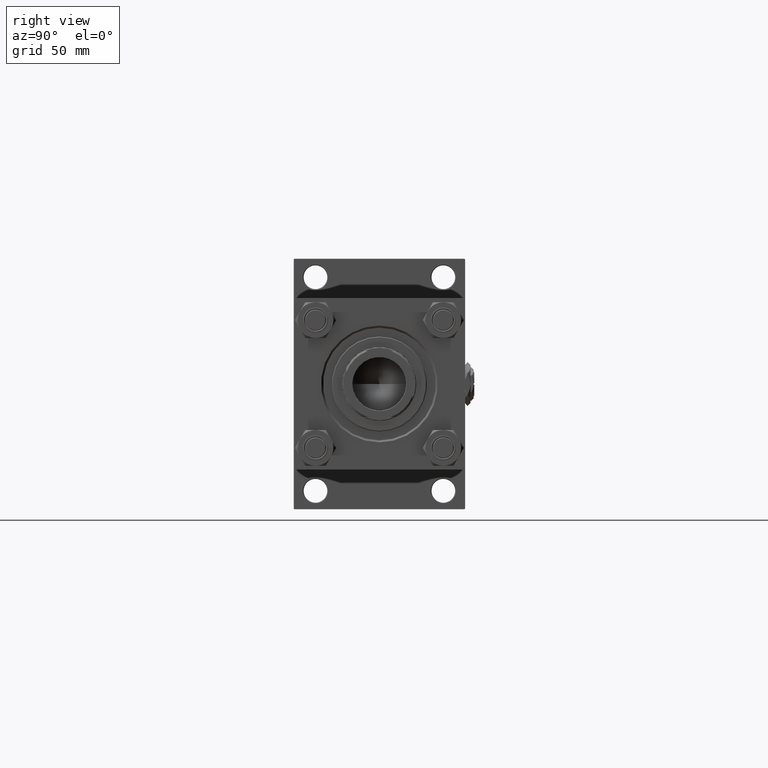
[diagram: clean part render]
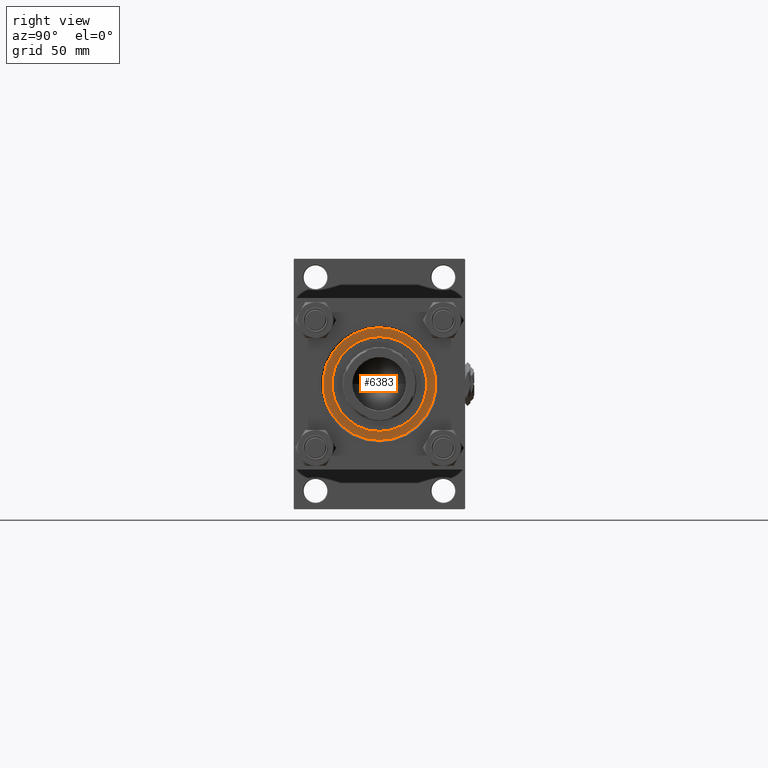
[diagram: same view with one face highlighted and labeled with its STEP entity id]
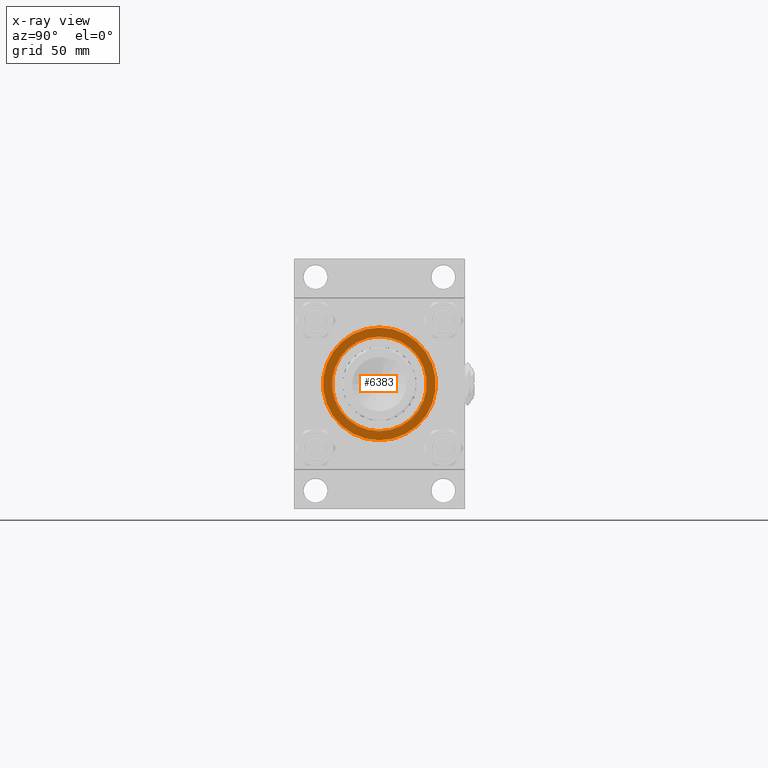
[diagram: x-ray of the same camera — body ghosted, the highlighted face saturated]
A machine part, right view. The second image highlights one B-rep face of the part: STEP entity #6383.
The next image is the same camera in x-ray: the body ghosted, the highlighted face saturated — about 0% of this face is hidden behind the body in this view.
In plain terms, the highlighted planar face has unit normal (1, 0, 0).
Its self-contained STEP definition (entity closure, byte-faithful):
#293 = DIRECTION ( 'NONE',  ( 1.000000000000000000, 0.000000000000000000, 0.000000000000000000 ) ) ;
#1587 = VERTEX_POINT ( 'NONE', #8786 ) ;
#3181 = AXIS2_PLACEMENT_3D ( 'NONE', #25575, #16796, #293 ) ;
#3337 = CIRCLE ( 'NONE', #33073, 36.00000000000000000 ) ;
#4292 = VERTEX_POINT ( 'NONE', #22814 ) ;
#5028 = AXIS2_PLACEMENT_3D ( 'NONE', #49928, #50720, #41956 ) ;
#5650 = CIRCLE ( 'NONE', #38790, 42.75000000000000000 ) ;
#6383 = ADVANCED_FACE ( 'NONE', ( #31605, #15118 ), #51793, .T. ) ;
#8786 = CARTESIAN_POINT ( 'NONE',  ( -36.00000000000000000, 0.000000000000000000, 28.69999999999999929 ) ) ;
#8909 = EDGE_CURVE ( 'NONE', #4292, #27907, #5650, .T. ) ;
#9177 = EDGE_LOOP ( 'NONE', ( #16321, #11313 ) ) ;
#10032 = EDGE_LOOP ( 'NONE', ( #22303, #32652 ) ) ;
#10326 = CARTESIAN_POINT ( 'NONE',  ( 0.000000000000000000, 0.000000000000000000, 28.69999999999999929 ) ) ;
#11138 = DIRECTION ( 'NONE',  ( 0.000000000000000000, 0.000000000000000000, 1.000000000000000000 ) ) ;
#11313 = ORIENTED_EDGE ( 'NONE', *, *, #15185, .T. ) ;
#12281 = CARTESIAN_POINT ( 'NONE',  ( 36.00000000000000000, 4.408728476930470856E-15, 28.69999999999999929 ) ) ;
#13287 = DIRECTION ( 'NONE',  ( 0.000000000000000000, 0.000000000000000000, 1.000000000000000000 ) ) ;
#13387 = VERTEX_POINT ( 'NONE', #12281 ) ;
#13540 = CIRCLE ( 'NONE', #5028, 42.75000000000000000 ) ;
#13557 = CARTESIAN_POINT ( 'NONE',  ( 0.000000000000000000, 0.000000000000000000, 28.69999999999999929 ) ) ;
#14856 = DIRECTION ( 'NONE',  ( 1.000000000000000000, 0.000000000000000000, -0.000000000000000000 ) ) ;
#15102 = EDGE_CURVE ( 'NONE', #1587, #13387, #3337, .T. ) ;
#15118 = FACE_OUTER_BOUND ( 'NONE', #9177, .T. ) ;
#15122 = CIRCLE ( 'NONE', #3181, 36.00000000000000000 ) ;
#15185 = EDGE_CURVE ( 'NONE', #27907, #4292, #13540, .T. ) ;
#16321 = ORIENTED_EDGE ( 'NONE', *, *, #8909, .T. ) ;
#16796 = DIRECTION ( 'NONE',  ( 0.000000000000000000, 0.000000000000000000, 1.000000000000000000 ) ) ;
#18314 = DIRECTION ( 'NONE',  ( 1.000000000000000000, 0.000000000000000000, 0.000000000000000000 ) ) ;
#22303 = ORIENTED_EDGE ( 'NONE', *, *, #15102, .F. ) ;
#22814 = CARTESIAN_POINT ( 'NONE',  ( -42.75000000000000000, 0.000000000000000000, 28.69999999999999929 ) ) ;
#25575 = CARTESIAN_POINT ( 'NONE',  ( 0.000000000000000000, 0.000000000000000000, 28.69999999999999929 ) ) ;
#27907 = VERTEX_POINT ( 'NONE', #39694 ) ;
#31605 = FACE_BOUND ( 'NONE', #10032, .T. ) ;
#32652 = ORIENTED_EDGE ( 'NONE', *, *, #49581, .F. ) ;
#32776 = AXIS2_PLACEMENT_3D ( 'NONE', #36098, #11138, #14856 ) ;
#33073 = AXIS2_PLACEMENT_3D ( 'NONE', #10326, #38492, #18314 ) ;
#33515 = DIRECTION ( 'NONE',  ( 1.000000000000000000, 0.000000000000000000, 0.000000000000000000 ) ) ;
#36098 = CARTESIAN_POINT ( 'NONE',  ( 0.000000000000000000, 0.000000000000000000, 28.69999999999999929 ) ) ;
#38492 = DIRECTION ( 'NONE',  ( 0.000000000000000000, 0.000000000000000000, 1.000000000000000000 ) ) ;
#38790 = AXIS2_PLACEMENT_3D ( 'NONE', #13557, #13287, #33515 ) ;
#39694 = CARTESIAN_POINT ( 'NONE',  ( 42.75000000000000000, 5.235365066354935472E-15, 28.69999999999999929 ) ) ;
#41956 = DIRECTION ( 'NONE',  ( 1.000000000000000000, 0.000000000000000000, 0.000000000000000000 ) ) ;
#49581 = EDGE_CURVE ( 'NONE', #13387, #1587, #15122, .T. ) ;
#49928 = CARTESIAN_POINT ( 'NONE',  ( 0.000000000000000000, 0.000000000000000000, 28.69999999999999929 ) ) ;
#50720 = DIRECTION ( 'NONE',  ( 0.000000000000000000, 0.000000000000000000, 1.000000000000000000 ) ) ;
#51793 = PLANE ( 'NONE',  #32776 ) ;